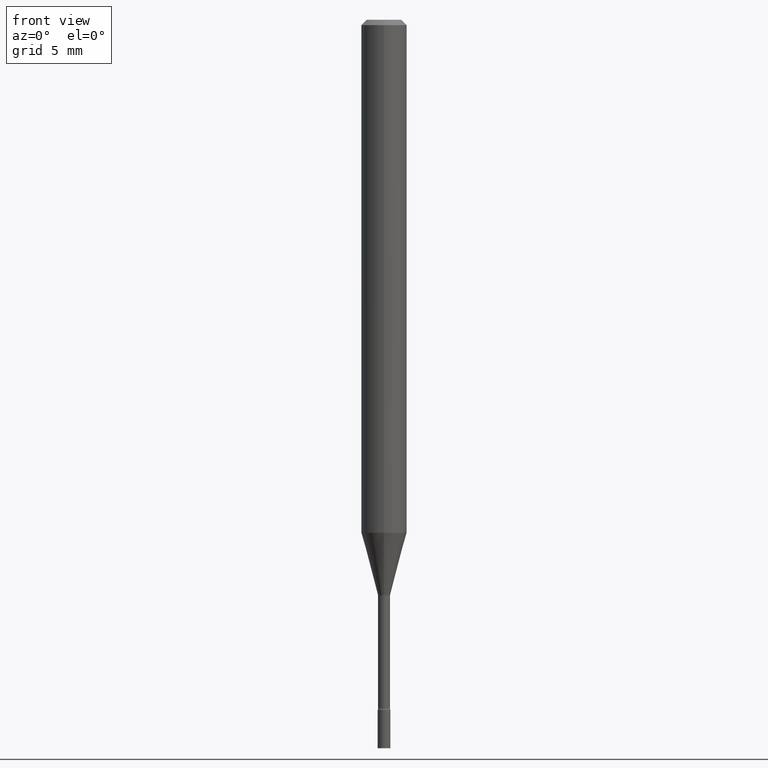
[diagram: clean part render]
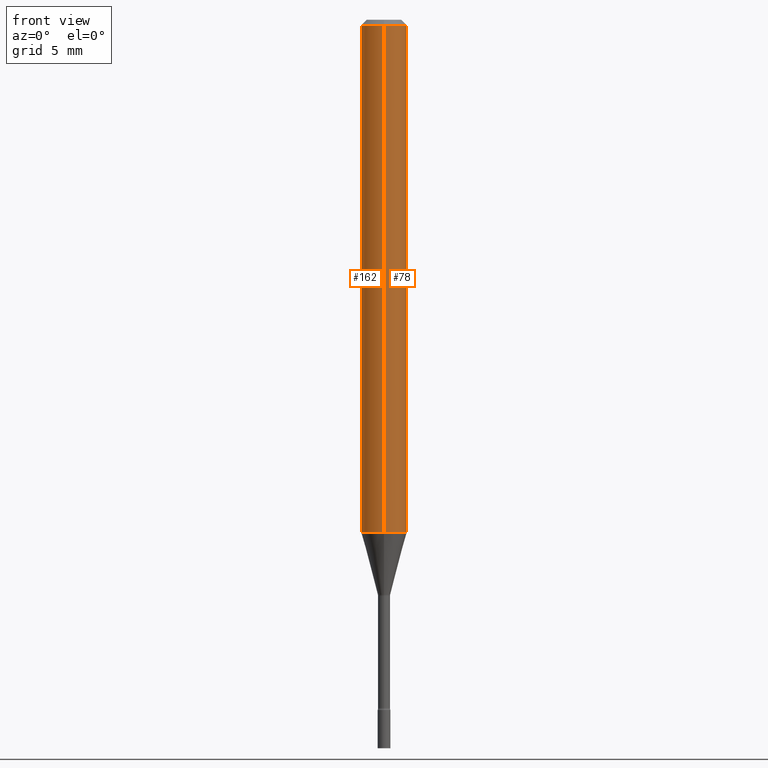
[diagram: same view with one multi-face feature highlighted, each face labeled with its STEP entity id]
A machine part, front view. The highlighted faces form ONE feature: a constant-radius fillet chain: 2 tangent blend faces with common blend radius 1.5875 mm. The faces share edges in the B-rep.
Their STEP definitions:
[1] entity #78 (Cylinder):
#4 = EDGE_LOOP ( 'NONE', ( #88, #456, #252, #84 ) ) ;
#23 = EDGE_CURVE ( 'NONE', #98, #122, #200, .T. ) ;
#25 = DIRECTION ( 'NONE',  ( -6.982962677686265922E-15, -1.000000000000000000, 3.483106191921935554E-15 ) ) ;
#55 = CARTESIAN_POINT ( 'NONE',  ( 3.668247773718405836E-31, -5.237158189449205006E-17, -0.01500000000000003067 ) ) ;
#60 = CARTESIAN_POINT ( 'NONE',  ( -4.364351673553916201E-16, -0.06250000000000000000, 2.182149245603831023E-16 ) ) ;
#78 = ADVANCED_FACE ( 'NONE', ( #171 ), #93, .T. ) ;
#84 = ORIENTED_EDGE ( 'NONE', *, *, #23, .F. ) ;
#88 = ORIENTED_EDGE ( 'NONE', *, *, #97, .T. ) ;
#93 = CYLINDRICAL_SURFACE ( 'NONE', #216, 0.06250000000000000000 ) ;
#97 = EDGE_CURVE ( 'NONE', #98, #133, #152, .T. ) ;
#98 = VERTEX_POINT ( 'NONE', #450 ) ;
#99 = CARTESIAN_POINT ( 'NONE',  ( 4.440892098500969316E-16, 0.06249999999999507339, -1.408139060311453639 ) ) ;
#113 = EDGE_CURVE ( 'NONE', #122, #368, #235, .T. ) ;
#122 = VERTEX_POINT ( 'NONE', #298 ) ;
#127 = VECTOR ( 'NONE', #257, 39.37007874015748143 ) ;
#133 = VERTEX_POINT ( 'NONE', #99 ) ;
#143 = EDGE_CURVE ( 'NONE', #133, #368, #348, .T. ) ;
#149 = CARTESIAN_POINT ( 'NONE',  ( 4.440892098500625669E-16, 0.06250000000000000000, -2.182149245603831023E-16 ) ) ;
#152 = CIRCLE ( 'NONE', #366, 0.06250000000000000000 ) ;
#171 = FACE_OUTER_BOUND ( 'NONE', #4, .T. ) ;
#200 = LINE ( 'NONE', #60, #127 ) ;
#216 = AXIS2_PLACEMENT_3D ( 'NONE', #501, #261, #504 ) ;
#224 = AXIS2_PLACEMENT_3D ( 'NONE', #55, #418, #25 ) ;
#235 = CIRCLE ( 'NONE', #224, 0.06250000000000000000 ) ;
#240 = CARTESIAN_POINT ( 'NONE',  ( 4.440892098500972274E-16, 0.06249999999999993755, -0.01500000000000024751 ) ) ;
#252 = ORIENTED_EDGE ( 'NONE', *, *, #113, .F. ) ;
#257 = DIRECTION ( 'NONE',  ( -2.445498515812266003E-29, 3.491438792966129242E-15, 1.000000000000000000 ) ) ;
#261 = DIRECTION ( 'NONE',  ( -2.445498515812265723E-29, 3.491438792966129637E-15, 1.000000000000000000 ) ) ;
#293 = VECTOR ( 'NONE', #399, 39.37007874015748143 ) ;
#298 = CARTESIAN_POINT ( 'NONE',  ( -4.364351673553912750E-16, -0.06250000000000005551, -0.01499999999999981209 ) ) ;
#326 = DIRECTION ( 'NONE',  ( -2.445498515812265723E-29, 3.491438792966129637E-15, 1.000000000000000000 ) ) ;
#348 = LINE ( 'NONE', #149, #293 ) ;
#366 = AXIS2_PLACEMENT_3D ( 'NONE', #464, #326, #383 ) ;
#368 = VERTEX_POINT ( 'NONE', #240 ) ;
#383 = DIRECTION ( 'NONE',  ( -6.982962677686265922E-15, -1.000000000000000000, 4.370956789862821150E-15 ) ) ;
#399 = DIRECTION ( 'NONE',  ( -2.445498515812266003E-29, 3.491438792966129242E-15, 1.000000000000000000 ) ) ;
#418 = DIRECTION ( 'NONE',  ( -2.445498515812265723E-29, 3.491438792966129637E-15, 1.000000000000000000 ) ) ;
#450 = CARTESIAN_POINT ( 'NONE',  ( -4.364351673553573540E-16, -0.06250000000000494049, -1.408139060311453195 ) ) ;
#456 = ORIENTED_EDGE ( 'NONE', *, *, #143, .T. ) ;
#464 = CARTESIAN_POINT ( 'NONE',  ( 3.443601982048937834E-29, -4.916431341062281529E-15, -1.408139060311453417 ) ) ;
#501 = CARTESIAN_POINT ( 'NONE',  ( 0.000000000000000000, 0.000000000000000000, 0.000000000000000000 ) ) ;
#504 = DIRECTION ( 'NONE',  ( -6.982962677686265922E-15, -1.000000000000000000, 3.491438792966129637E-15 ) ) ;
[2] entity #162 (Cylinder):
#23 = EDGE_CURVE ( 'NONE', #98, #122, #200, .T. ) ;
#36 = ORIENTED_EDGE ( 'NONE', *, *, #23, .T. ) ;
#51 = CIRCLE ( 'NONE', #414, 0.06250000000000000000 ) ;
#60 = CARTESIAN_POINT ( 'NONE',  ( -4.364351673553916201E-16, -0.06250000000000000000, 2.182149245603831023E-16 ) ) ;
#91 = EDGE_LOOP ( 'NONE', ( #96, #302, #36, #256 ) ) ;
#96 = ORIENTED_EDGE ( 'NONE', *, *, #143, .F. ) ;
#98 = VERTEX_POINT ( 'NONE', #450 ) ;
#99 = CARTESIAN_POINT ( 'NONE',  ( 4.440892098500969316E-16, 0.06249999999999507339, -1.408139060311453639 ) ) ;
#122 = VERTEX_POINT ( 'NONE', #298 ) ;
#127 = VECTOR ( 'NONE', #257, 39.37007874015748143 ) ;
#133 = VERTEX_POINT ( 'NONE', #99 ) ;
#143 = EDGE_CURVE ( 'NONE', #133, #368, #348, .T. ) ;
#149 = CARTESIAN_POINT ( 'NONE',  ( 4.440892098500625669E-16, 0.06250000000000000000, -2.182149245603831023E-16 ) ) ;
#162 = ADVANCED_FACE ( 'NONE', ( #181 ), #350, .T. ) ;
#168 = DIRECTION ( 'NONE',  ( -2.445498515812265723E-29, 3.491438792966129637E-15, 1.000000000000000000 ) ) ;
#169 = DIRECTION ( 'NONE',  ( -2.445498515812265723E-29, 3.491438792966129637E-15, 1.000000000000000000 ) ) ;
#180 = CIRCLE ( 'NONE', #282, 0.06250000000000000000 ) ;
#181 = FACE_OUTER_BOUND ( 'NONE', #91, .T. ) ;
#200 = LINE ( 'NONE', #60, #127 ) ;
#202 = CARTESIAN_POINT ( 'NONE',  ( 0.000000000000000000, 0.000000000000000000, 0.000000000000000000 ) ) ;
#239 = CARTESIAN_POINT ( 'NONE',  ( 3.668247773718405836E-31, -5.237158189449205006E-17, -0.01500000000000003067 ) ) ;
#240 = CARTESIAN_POINT ( 'NONE',  ( 4.440892098500972274E-16, 0.06249999999999993755, -0.01500000000000024751 ) ) ;
#243 = DIRECTION ( 'NONE',  ( -6.982962677686265922E-15, -1.000000000000000000, 3.483106191921935554E-15 ) ) ;
#245 = AXIS2_PLACEMENT_3D ( 'NONE', #202, #168, #328 ) ;
#256 = ORIENTED_EDGE ( 'NONE', *, *, #430, .F. ) ;
#257 = DIRECTION ( 'NONE',  ( -2.445498515812266003E-29, 3.491438792966129242E-15, 1.000000000000000000 ) ) ;
#282 = AXIS2_PLACEMENT_3D ( 'NONE', #440, #365, #444 ) ;
#293 = VECTOR ( 'NONE', #399, 39.37007874015748143 ) ;
#298 = CARTESIAN_POINT ( 'NONE',  ( -4.364351673553912750E-16, -0.06250000000000005551, -0.01499999999999981209 ) ) ;
#302 = ORIENTED_EDGE ( 'NONE', *, *, #453, .T. ) ;
#328 = DIRECTION ( 'NONE',  ( -6.982962677686265922E-15, -1.000000000000000000, 3.491438792966129637E-15 ) ) ;
#348 = LINE ( 'NONE', #149, #293 ) ;
#350 = CYLINDRICAL_SURFACE ( 'NONE', #245, 0.06250000000000000000 ) ;
#365 = DIRECTION ( 'NONE',  ( -2.445498515812265723E-29, 3.491438792966129637E-15, 1.000000000000000000 ) ) ;
#368 = VERTEX_POINT ( 'NONE', #240 ) ;
#399 = DIRECTION ( 'NONE',  ( -2.445498515812266003E-29, 3.491438792966129242E-15, 1.000000000000000000 ) ) ;
#414 = AXIS2_PLACEMENT_3D ( 'NONE', #239, #169, #243 ) ;
#430 = EDGE_CURVE ( 'NONE', #368, #122, #51, .T. ) ;
#440 = CARTESIAN_POINT ( 'NONE',  ( 3.443601982048937834E-29, -4.916431341062281529E-15, -1.408139060311453417 ) ) ;
#444 = DIRECTION ( 'NONE',  ( -6.982962677686265922E-15, -1.000000000000000000, 4.370956789862821150E-15 ) ) ;
#450 = CARTESIAN_POINT ( 'NONE',  ( -4.364351673553573540E-16, -0.06250000000000494049, -1.408139060311453195 ) ) ;
#453 = EDGE_CURVE ( 'NONE', #133, #98, #180, .T. ) ;